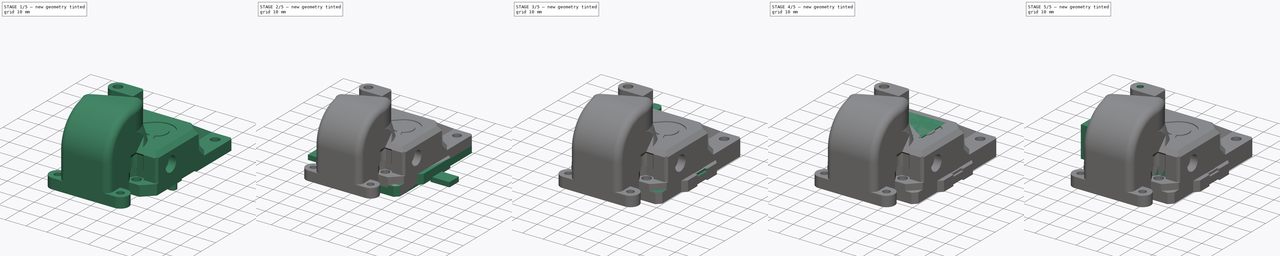
[diagram: build sequence overview — one tinted view per stage of 5, left to right]
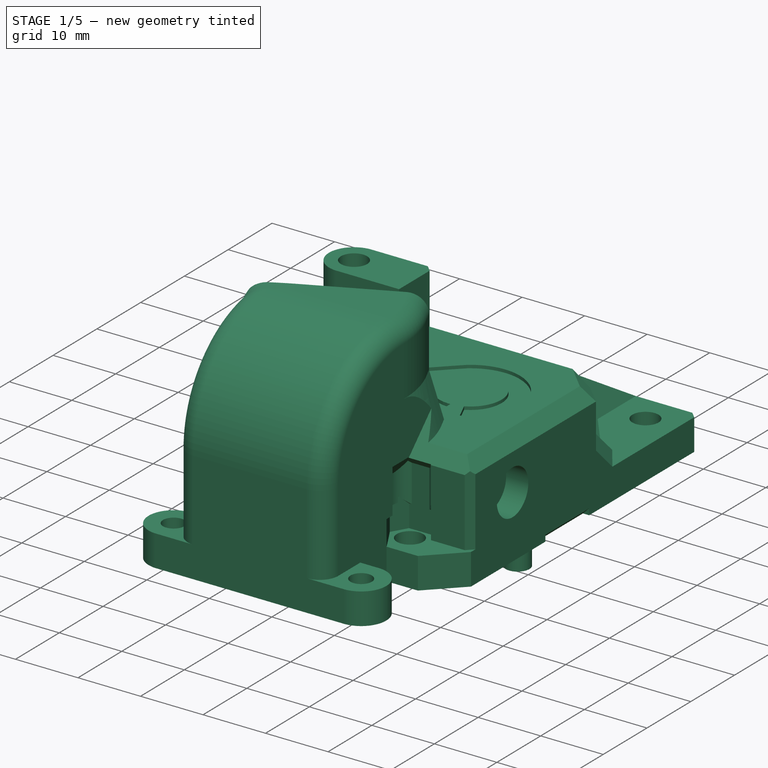
[diagram: stage 1 of 5 — iso view after this stage's code; geometry added in this stage tinted green]
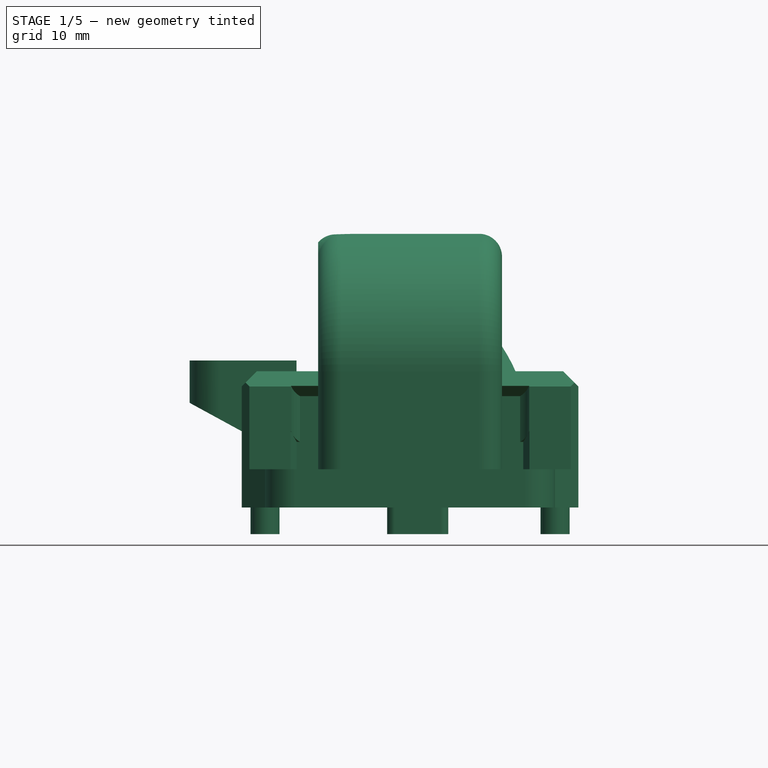
[diagram: stage 1 of 5 — front view after this stage's code; geometry added in this stage tinted green]
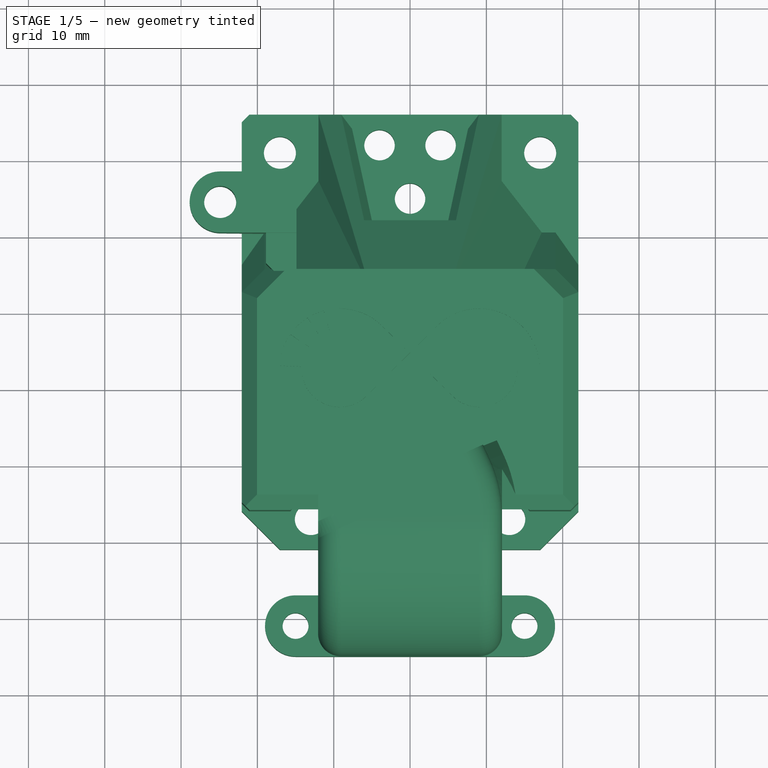
[diagram: stage 1 of 5 — top view after this stage's code; geometry added in this stage tinted green]
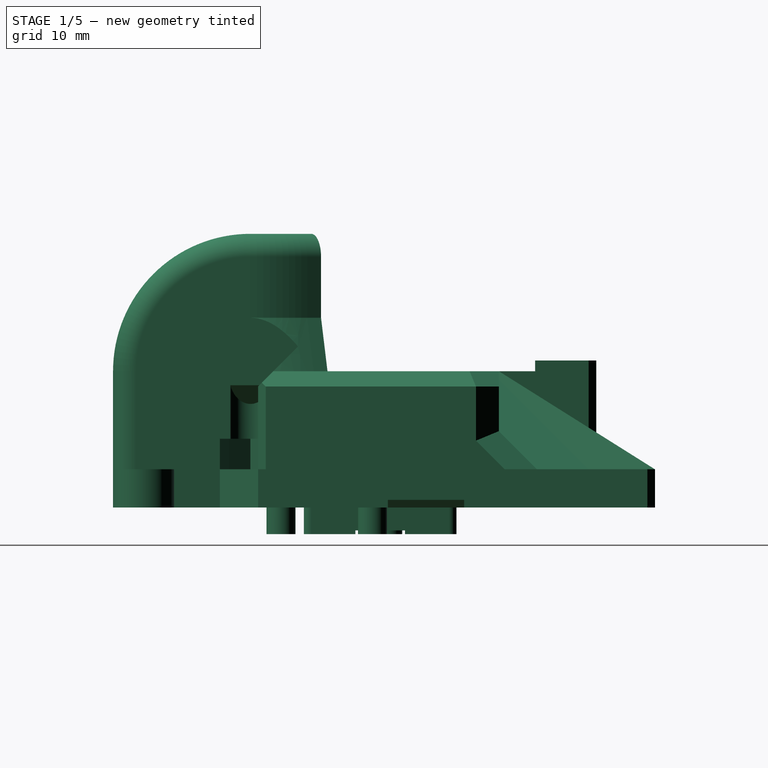
[diagram: stage 1 of 5 — right view after this stage's code; geometry added in this stage tinted green]
FCSTD DOCUMENT  (FreeCAD 0.19R24291 (Git))
Label: face-plate_w_inserts
License: Other
LicenseURL: GPL3
objects: Part::Feature×62, Part::MultiFuse×19, Part::Box×18, Part::Cylinder×16, Part::Cut×14, Part::Chamfer×6, Sketcher::SketchObject×4, Part::Refine×3, Part::Fillet×3, PartDesign::Pocket×3, App::Part×2, PartDesign::Pad×2, Part::Extrusion×1, Part::MultiCommon×1, PartDesign::FeatureBase×1, PartDesign::Body×1
note: 159 computed .brp shape members not serialized (recipe doc carries the construction recipe); baked Part::Feature solids carry a one-line shape summary decoded from their .brp

FEATURE [Part::Cylinder] Cylinder006
  Angle = 360
  AttacherType = Attacher::AttachEngine3D
  Height = 10
  Placement = pos=(-19,1,0) rot=(0,0,1;0rad)
  Radius = 1.9
FEATURE [Part::Cylinder] Cylinder007
  Angle = 360
  AttacherType = Attacher::AttachEngine3D
  Height = 10
  Placement = pos=(-19,-13,0) rot=(0,0,1;0rad)
  Radius = 1.9
FEATURE [Part::Cylinder] Cylinder008
  Angle = 360
  AttacherType = Attacher::AttachEngine3D
  Height = 10
  Placement = pos=(19,-1,0) rot=(0,0,1;0rad)
  Radius = 1.9
FEATURE [Part::Cylinder] Cylinder011
  Angle = 360
  AttacherType = Attacher::AttachEngine3D
  Height = 10
  Placement = pos=(0,7,0) rot=(0,0,1;0rad)
  Radius = 1.6
FEATURE [Part::Cylinder] Cylinder012
  Angle = 360
  AttacherType = Attacher::AttachEngine3D
  Height = 10
  Placement = pos=(0,-7,0) rot=(0,0,1;0rad)
  Radius = 1.6
FEATURE [Part::Box] Box008  label="Cube008"
  AttacherType = Attacher::AttachEngine3D
  Height = 4
  Length = 8
  Placement = pos=(-3,-10,0) rot=(0,0,1;0rad)
  Width = 20
FEATURE [Part::MultiFuse] Fusion017
  Shapes = -> [Cylinder011,Cylinder012]
FEATURE [Part::Box] Box009  label="Cube009"
  AttacherType = Attacher::AttachEngine3D
  Height = 0.5
  Length = 10
  Placement = pos=(-4,-3.25,0) rot=(0,0,1;0rad)
  Width = 6.5
FEATURE [Part::Fillet] Fillet002
  Base = -> Box008
  Edges = 4 edges r=1: [Edge1,Edge3,Edge5,Edge7]
FEATURE [Part::Cut] Cut008004003012001003001009
  Base = -> Fillet002
  Tool = -> Fusion017
FEATURE [Part::Cut] Cut008004003012001003001010  label="belt-clamp"
  Base = -> Cut008004003012001003001009
  Tool = -> Box009
FEATURE [Part::Refine] Fillet001001  label="face-plate-rf001"
  Source = -> Fillet001
FEATURE [Part::Refine] Cut008004003012001003001010001  label="belt-clamp002"
  Source = -> Cut008004003012001003001010
FEATURE [Part::Feature] Fillet001001001  label="face-plate-rf002"
  shape: bbox 48 x 57 x 8 mm, 236 faces (baked)
FEATURE [Part::Feature] Cut008004003012001003001010001001  label="belt-clamp003"
  Placement = pos=(19,6,6) rot=(0,0,1;0rad)
  shape: bbox 8 x 20 x 4 mm, 16 faces (baked)
FEATURE [PartDesign::FeatureBase] BaseFeature
  BaseFeature = -> Cut008004003012001003001001
FEATURE [Sketcher::SketchObject] Sketch
  ExternalGeometry = -> [BaseFeature]
  FullyConstrained = true
  MapMode = 5
  Placement = pos=(0,0,3.5) rot=(1,0,0;3.14159rad)
  Support = -> [BaseFeature]
  sketch-geometry (28):
    g0: LineSegment StartX=14.6166 StartY=19.8 StartZ=0 EndX=16.2332 EndY=17 EndZ=0
    g1: LineSegment StartX=16.2332 StartY=17 StartZ=0 EndX=14.8384 EndY=14.5842 EndZ=0
    g2: LineSegment StartX=14.8384 StartY=14.5842 StartZ=0 EndX=11.1616 EndY=14.5842 EndZ=0
    g3: LineSegment StartX=11.1616 StartY=14.5842 StartZ=0 EndX=9.76684 EndY=17 EndZ=0
    g4: LineSegment StartX=9.76684 StartY=17 StartZ=0 EndX=11.3834 EndY=19.8 EndZ=0
    g5: LineSegment StartX=11.3834 StartY=19.8 StartZ=0 EndX=14.6166 EndY=19.8 EndZ=0
    g6: LineSegment StartX=-9.76684 StartY=17 StartZ=0 EndX=-11.3834 EndY=19.8 EndZ=0
    g7: LineSegment StartX=-11.3834 StartY=19.8 StartZ=0 EndX=-14.6166 EndY=19.8 EndZ=0
    g8: LineSegment StartX=-14.6166 StartY=19.8 StartZ=0 EndX=-16.2332 EndY=17 EndZ=0
    g9: LineSegment StartX=-16.2332 StartY=17 StartZ=0 EndX=-14.8384 EndY=14.5842 EndZ=0
    g10: LineSegment StartX=-14.8384 StartY=14.5842 StartZ=0 EndX=-11.1616 EndY=14.5842 EndZ=0
    g11: LineSegment StartX=-11.1616 StartY=14.5842 StartZ=0 EndX=-9.76684 EndY=17 EndZ=0
    g12: LineSegment StartX=-18.6666 StartY=-28.2 StartZ=0 EndX=-20.2832 EndY=-31 EndZ=0
    g13: LineSegment StartX=-20.2832 StartY=-31 StartZ=0 EndX=-18.6666 EndY=-33.8 EndZ=0
    g14: LineSegment StartX=-18.6666 StartY=-33.8 StartZ=0 EndX=-15.4334 EndY=-33.8 EndZ=0
    g15: LineSegment StartX=-15.4334 StartY=-33.8 StartZ=0 EndX=-13.8168 EndY=-31 EndZ=0
    g16: LineSegment StartX=-13.8168 StartY=-31 StartZ=0 EndX=-15.4334 EndY=-28.2 EndZ=0
    g17: LineSegment StartX=-15.4334 StartY=-28.2 StartZ=0 EndX=-18.6666 EndY=-28.2 EndZ=0
    g18: LineSegment StartX=15.4334 StartY=-28.2 StartZ=0 EndX=18.6666 EndY=-28.2 EndZ=0
    g19: LineSegment StartX=18.6666 StartY=-28.2 StartZ=0 EndX=20.2832 EndY=-31 EndZ=0
    g20: LineSegment StartX=20.2832 StartY=-31 StartZ=0 EndX=18.6666 EndY=-33.8 EndZ=0
    g21: LineSegment StartX=18.6666 StartY=-33.8 StartZ=0 EndX=15.4334 EndY=-33.8 EndZ=0
    g22: LineSegment StartX=15.4334 StartY=-33.8 StartZ=0 EndX=13.8168 EndY=-31 EndZ=0
    g23: LineSegment StartX=13.8168 StartY=-31 StartZ=0 EndX=15.4334 EndY=-28.2 EndZ=0
    g24: Circle CenterX=13 CenterY=17 CenterZ=0 NormalX=0 NormalY=0 NormalZ=1 AngleXU=0 Radius=1.65
    g25: Circle CenterX=-13 CenterY=17 CenterZ=0 NormalX=0 NormalY=0 NormalZ=1 AngleXU=0 Radius=1.65
    g26: Circle CenterX=-17.05 CenterY=-31 CenterZ=0 NormalX=0 NormalY=0 NormalZ=1 AngleXU=0 Radius=1.65
    g27: Circle CenterX=17.05 CenterY=-31 CenterZ=0 NormalX=0 NormalY=0 NormalZ=1 AngleXU=0 Radius=1.65
  constraints (56):
    c: Coincident(g-20,g0)
    c: Coincident(g0,g-20)
    c: Coincident(g0,g1)
    c: Coincident(g1,g-19)
    c: Coincident(g1,g2)
    c: Coincident(g2,g-18)
    c: Coincident(g2,g3)
    c: Coincident(g3,g-16)
    c: Coincident(g3,g4)
    c: Coincident(g4,g-17)
    c: Coincident(g4,g5)
    c: Coincident(g5,g0)
    c: Coincident(g-25,g6)
    c: Coincident(g6,g-24)
    c: Coincident(g6,g7)
    c: Coincident(g7,g-23)
    c: Coincident(g7,g8)
    c: Coincident(g8,g-22)
    c: Coincident(g8,g9)
    c: Coincident(g9,g-26)
    c: Coincident(g10,g9)
    c: Coincident(g10,g-26)
    c: Coincident(g11,g10)
    c: Coincident(g11,g6)
    c: Coincident(g12,g-14)
    c: Coincident(g12,g-14)
    c: Coincident(g13,g12)
    c: Coincident(g13,g-10)
    c: Coincident(g14,g-10)
    c: Coincident(g14,g-11)
    c: Coincident(g15,g14)
    c: Coincident(g15,g-12)
    c: Coincident(g16,g15)
    c: Coincident(g16,g-13)
    c: Coincident(g17,g16)
    c: Coincident(g17,g12)
    c: Coincident(g18,g-5)
    c: Coincident(g18,g-6)
    c: Coincident(g19,g18)
    c: Coincident(g19,g-7)
    c: Coincident(g20,g19)
    c: Coincident(g20,g-8)
    c: Coincident(g21,g20)
    c: Coincident(g21,g-3)
    c: Coincident(g22,g21)
    c: Coincident(g22,g-4)
    c: Coincident(g23,g22)
    c: Coincident(g23,g18)
    c: Coincident(g24,g-30)
    c: Coincident(g25,g-29)
    c: Coincident(g26,g-28)
    c: Coincident(g27,g-27)
    c: Equal(g25,g24)
    c: Equal(g24,g27)
    c: Equal(g27,g26)
    c: Equal(g27,g-27)
FEATURE [PartDesign::Pad] Pad
  BaseFeature = -> BaseFeature
  Direction = (1,1,1)
  Length = 10
  Length2 = 100
  Profile = -> Sketch
  Refine = true
  Reversed = true
  Type = 3
  UpToFace = -> BaseFeature [Face148]
FEATURE [Sketcher::SketchObject] Sketch001
  ExternalGeometry = -> [Pad]
  FullyConstrained = true
  MapMode = 5
  Placement = pos=(0,0,3.5) rot=(1,0,0;3.14159rad)
  Support = -> [Pad]
  sketch-geometry (4):
    g0: Circle CenterX=17.05 CenterY=-31 CenterZ=0 NormalX=0 NormalY=0 NormalZ=1 AngleXU=0 Radius=2.1
    g1: Circle CenterX=-17.05 CenterY=-31 CenterZ=0 NormalX=0 NormalY=0 NormalZ=1 AngleXU=0 Radius=2.1
    g2: Circle CenterX=-13 CenterY=17 CenterZ=0 NormalX=0 NormalY=0 NormalZ=1 AngleXU=0 Radius=2.1
    g3: Circle CenterX=13 CenterY=17 CenterZ=0 NormalX=0 NormalY=0 NormalZ=1 AngleXU=0 Radius=2.1
  constraints (8):
    c: Coincident(g0,g-6)
    c: Coincident(g1,g-3)
    c: Coincident(g2,g-4)
    c: Coincident(g3,g-5)
    c: Equal(g0,g3)
    c: Equal(g3,g2)
    c: Equal(g2,g1)
    c: Diameter(g2) = 4.2
FEATURE [PartDesign::Pocket] Pocket
  BaseFeature = -> Pad
  Length = 5
  Length2 = 100
  Profile = -> Sketch001
  Refine = true
  Type = 0
FEATURE [PartDesign::Pad] Pad001
  BaseFeature = -> Pocket
  Direction = (1,1,1)
  Length = 10
  Length2 = 100
  Profile = -> Pocket [Face467]
  Refine = true
  Type = 0
FEATURE [Sketcher::SketchObject] Sketch002
  ExternalGeometry = -> [Pad001]
  FullyConstrained = false
  MapMode = 5
  Placement = pos=(-2.46e-14,28.3023,0) rot=(0,0.707107,0.707107;3.14159rad)
  Support = -> [Pad001]
  sketch-geometry (4):
    g0: LineSegment StartX=20.4129 StartY=12.5884 StartZ=0 EndX=30.3188 EndY=17.9916 EndZ=0
    g1: LineSegment StartX=20.4129 StartY=12.5884 StartZ=0 EndX=21.5374 EndY=8.65501 EndZ=0
    g2: LineSegment StartX=21.5374 StartY=8.65501 StartZ=0 EndX=30.92 EndY=9.23537 EndZ=0
    g3: LineSegment StartX=30.92 StartY=9.23537 StartZ=0 EndX=30.3188 EndY=17.9916 EndZ=0
  constraints (6):
    c: PointOnObject(g0,g-3)
    c: Parallel(g0,g-3)
    c: Coincident(g1,g0)
    c: Coincident(g2,g1)
    c: Coincident(g3,g2)
    c: Coincident(g3,g0)
FEATURE [PartDesign::Pocket] Pocket001
  BaseFeature = -> Pad001
  Length = 7
  Length2 = 100
  Profile = -> Sketch002
  Refine = true
  Type = 0
FEATURE [Sketcher::SketchObject] Sketch003
  ExternalGeometry = -> [Pocket001]
  FullyConstrained = true
  MapMode = 5
  Placement = pos=(0,0,22.75) rot=(0,0,1;0rad)
  Support = -> [Pocket001]
  sketch-geometry (1):
    g0: Circle CenterX=-24.8758 CenterY=24.3023 CenterZ=0 NormalX=0 NormalY=0 NormalZ=1 AngleXU=0 Radius=2.1
  constraints (2):
    c: Coincident(g0,g-3)
    c: Diameter(g0) = 4.2
FEATURE [PartDesign::Pocket] Pocket002
  BaseFeature = -> Pocket001
  Length = 9
  Length2 = 100
  Profile = -> Sketch003
  Refine = true
  Type = 0
FEATURE [PartDesign::Body] Body
  BaseFeature = -> Cut008004003012001003001001
  Group = -> [BaseFeature,Sketch,Pad,Sketch001,Pocket,Pad001,Sketch002,Pocket001,Sketch003,Pocket002]
  Origin = -> Origin002
  Tip = -> Pocket002
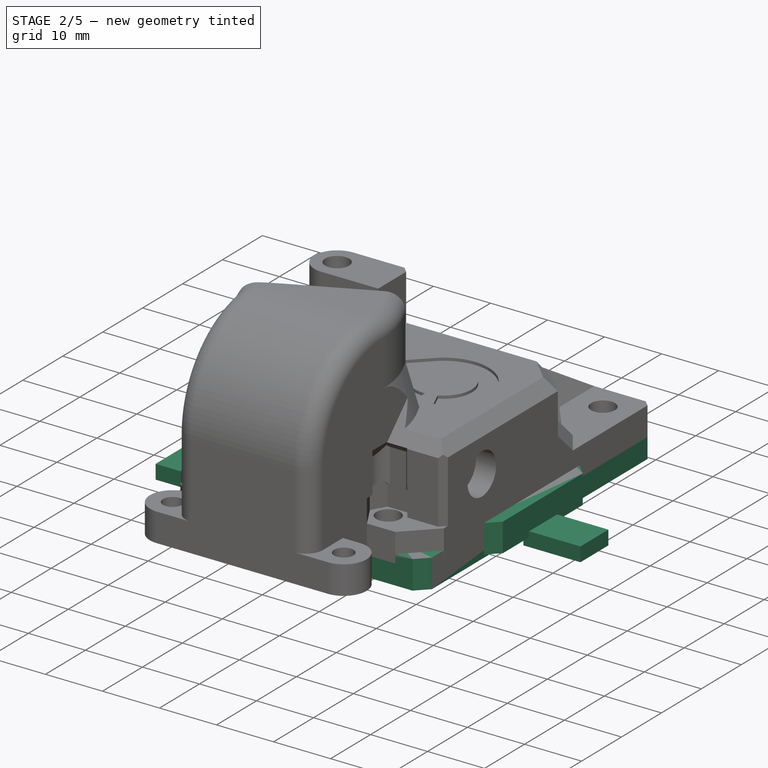
[diagram: stage 2 of 5 — iso view after this stage's code; geometry added in this stage tinted green]
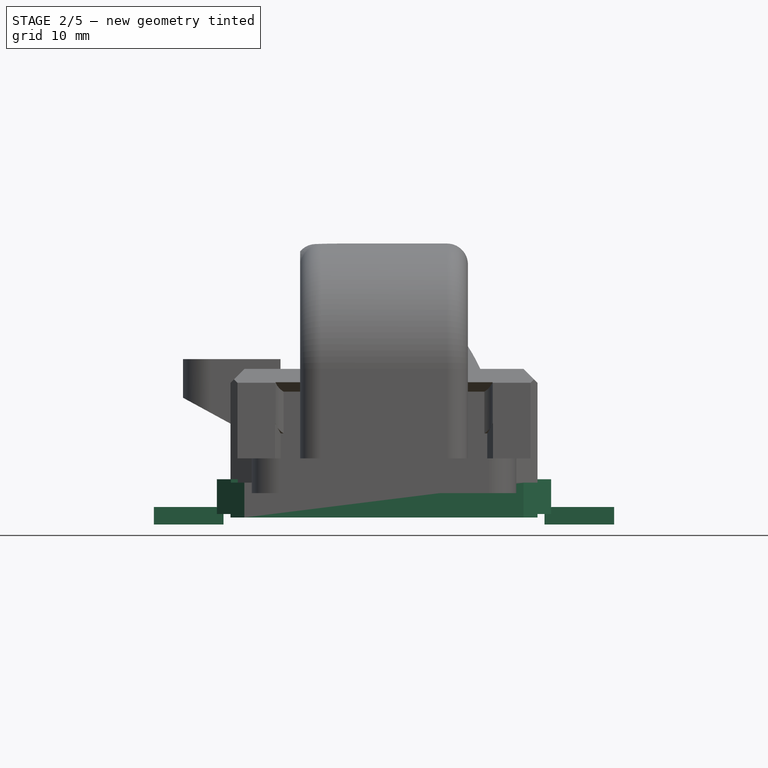
[diagram: stage 2 of 5 — front view after this stage's code; geometry added in this stage tinted green]
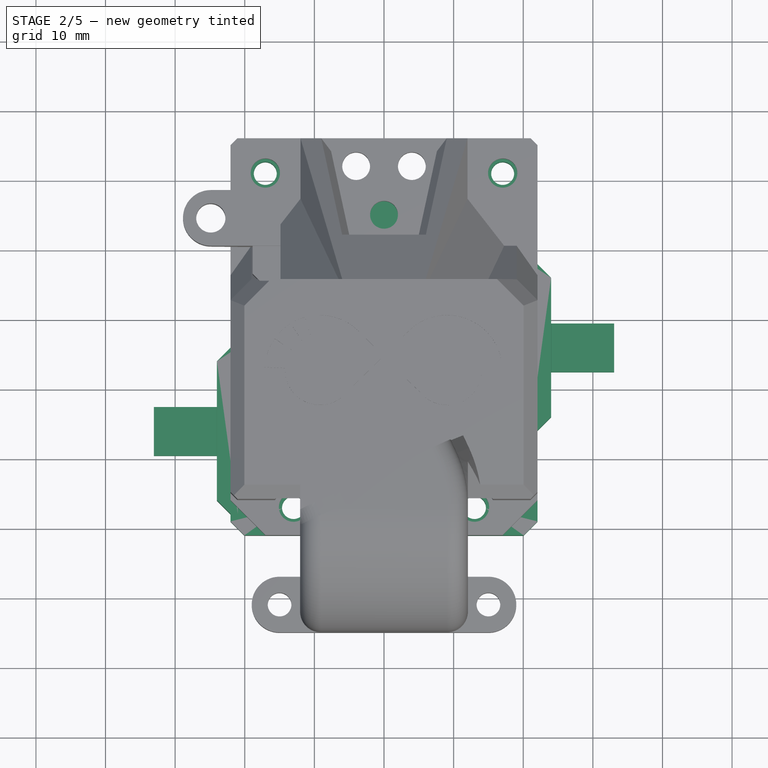
[diagram: stage 2 of 5 — top view after this stage's code; geometry added in this stage tinted green]
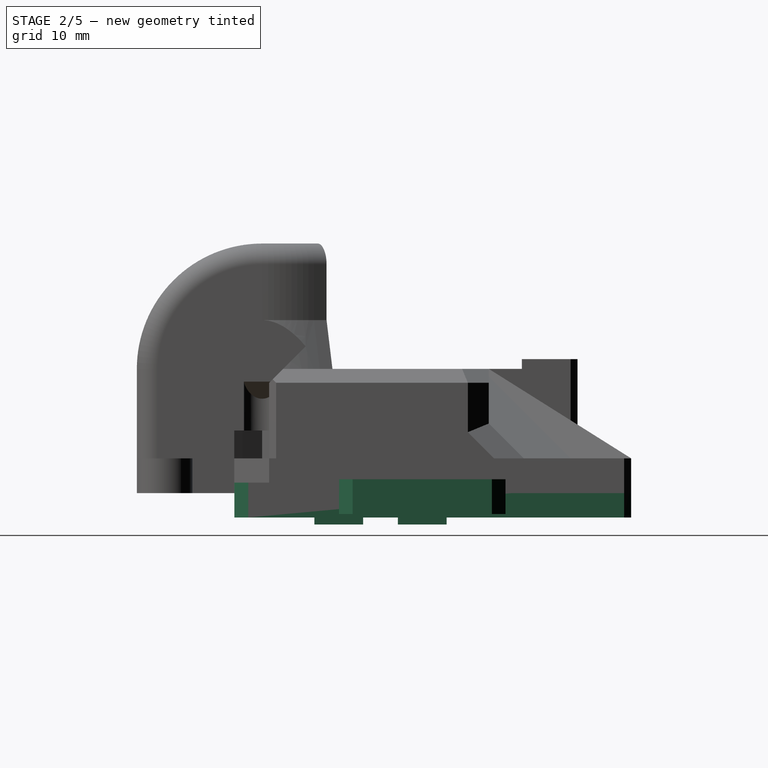
[diagram: stage 2 of 5 — right view after this stage's code; geometry added in this stage tinted green]
FEATURE [Part::Cylinder] Cylinder
  Angle = 360
  AttacherType = Attacher::AttachEngine3D
  Height = 10
  Placement = pos=(-10.8,17.71,0) rot=(0,0,1;1.5708rad)
  Radius = 2
FEATURE [Part::Cylinder] Cylinder001
  Angle = 360
  AttacherType = Attacher::AttachEngine3D
  Height = 10
  Placement = pos=(10.8,17.705,0) rot=(0,0,1;0rad)
  Radius = 2
FEATURE [Part::MultiFuse] Fusion002
  Shapes = -> [Cylinder001,Cylinder]
FEATURE [Part::Box] Box006  label="Cube006"
  AttacherType = Attacher::AttachEngine3D
  Height = 2.5
  Length = 10
  Placement = pos=(-37,-9.5,-1) rot=(0,0,1;0rad)
  Width = 7
FEATURE [Part::Box] Box007  label="Cube007"
  AttacherType = Attacher::AttachEngine3D
  Height = 2.5
  Length = 10
  Placement = pos=(28,2.5,-1) rot=(0,0,1;0rad)
  Width = 7
FEATURE [Part::Cylinder] Cylinder005
  Angle = 360
  AttacherType = Attacher::AttachEngine3D
  Height = 10
  Placement = pos=(19,13,0) rot=(0,0,1;0rad)
  Radius = 1.9
FEATURE [Part::Feature] Part__Feature074_cs001
  shape: bbox 30 x 14.2 x 3e-07 mm, 0 faces, 0 solids (baked)
FEATURE [Part::Feature] Body005  label="base-plate"
  shape: bbox 44.1 x 57 x 5 mm, 134 faces (baked)
FEATURE [Part::Extrusion] Extrude
  Base = -> Part__Feature074_cs001
  Dir = (0,0,1)
  DirMode = 2
  FaceMakerClass = Part::FaceMakerBullseye
  LengthFwd = 3
  LengthRev = 0
  Placement = pos=(0,0,-1) rot=(0,0,1;0rad)
  Solid = true
  Symmetric = false
FEATURE [Part::Feature] Part__Feature074  label="universal_face"
  Placement = pos=(-0.00422634,7.50353,0.50127) rot=(-1,0,0;1.5708rad)
  shape: bbox 44.11 x 57.01 x 8.01 mm, 258 faces (baked)
FEATURE [Part::MultiFuse] Fusion
  Shapes = -> [Extrude,Body005]
FEATURE [Part::Chamfer] Chamfer003
  Base = -> Box006
  Edges = 1 edges r=1: [Edge6]
  Placement = pos=(3.95,0,0) rot=(0,0,1;0rad)
FEATURE [Part::Chamfer] Chamfer004
  Base = -> Box007
  Edges = 1 edges r=1: [Edge2]
  Placement = pos=(-4.95,0,0) rot=(0,0,1;0rad)
FEATURE [Part::Refine] Cut008004003012001003001
  Source = -> Cut008004003012001003
FEATURE [Part::Feature] Cut008004003012001003001001
  shape: bbox 50.93 x 72.49 x 37.34 mm, 488 faces (baked)
FEATURE [Part::Box] Box020  label="Cube018"
  AttacherType = Attacher::AttachEngine3D
  Height = 5
  Length = 3
  Placement = pos=(21,-6,0.5) rot=(0,0,1;0rad)
  Width = 24
FEATURE [Part::Box] Box021  label="Cube019"
  AttacherType = Attacher::AttachEngine3D
  Height = 5
  Length = 3
  Placement = pos=(-24,-18,0.5) rot=(0,0,1;0rad)
  Width = 24
FEATURE [Part::Chamfer] Chamfer005
  Base = -> Box021
  Edges = 2 edges r=2: [Edge1,Edge3]
FEATURE [Part::Chamfer] Chamfer006
  Base = -> Box020
  Edges = 2 edges r=2: [Edge5,Edge7]
FEATURE [Part::MultiFuse] Fusion001007011015
  Shapes = -> [Chamfer005,Chamfer006]
FEATURE [Part::MultiFuse] Fusion001007011017
  Shapes = -> [Chamfer004,Chamfer003]
FEATURE [Part::MultiFuse] Fusion001007011018
  Shapes = -> [Cylinder006,Cylinder005,Cylinder007,Cylinder008]
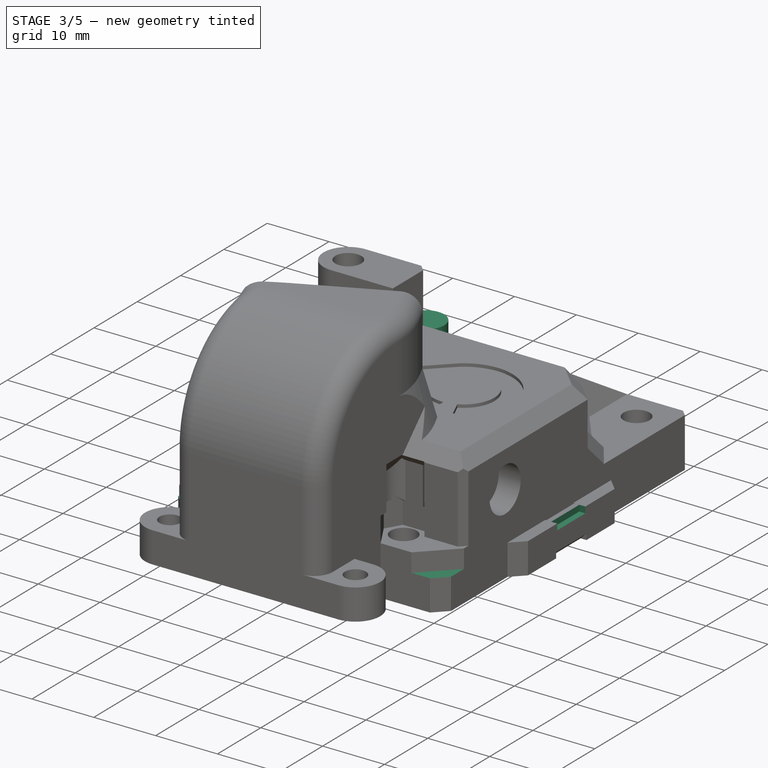
[diagram: stage 3 of 5 — iso view after this stage's code; geometry added in this stage tinted green]
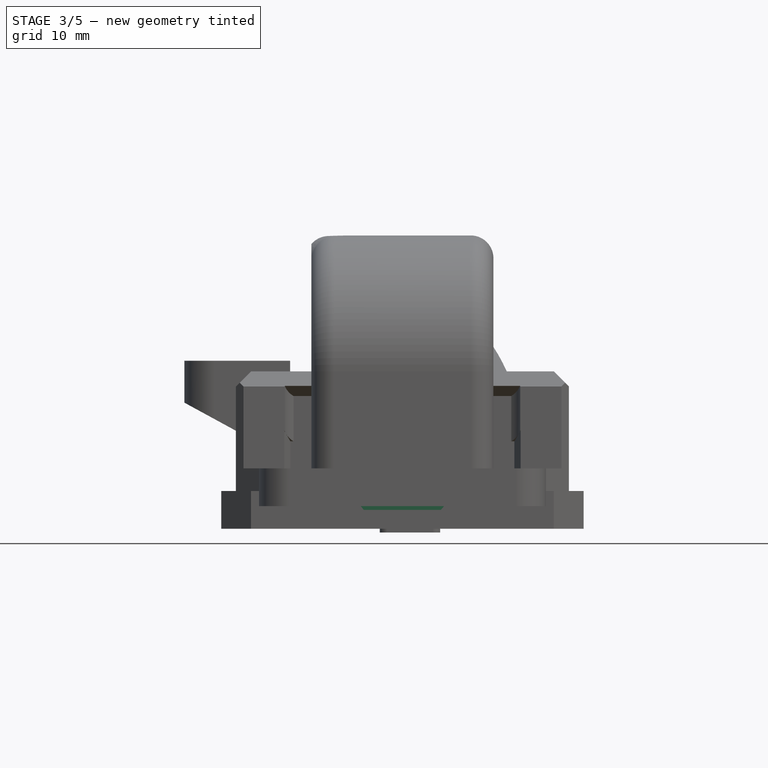
[diagram: stage 3 of 5 — front view after this stage's code; geometry added in this stage tinted green]
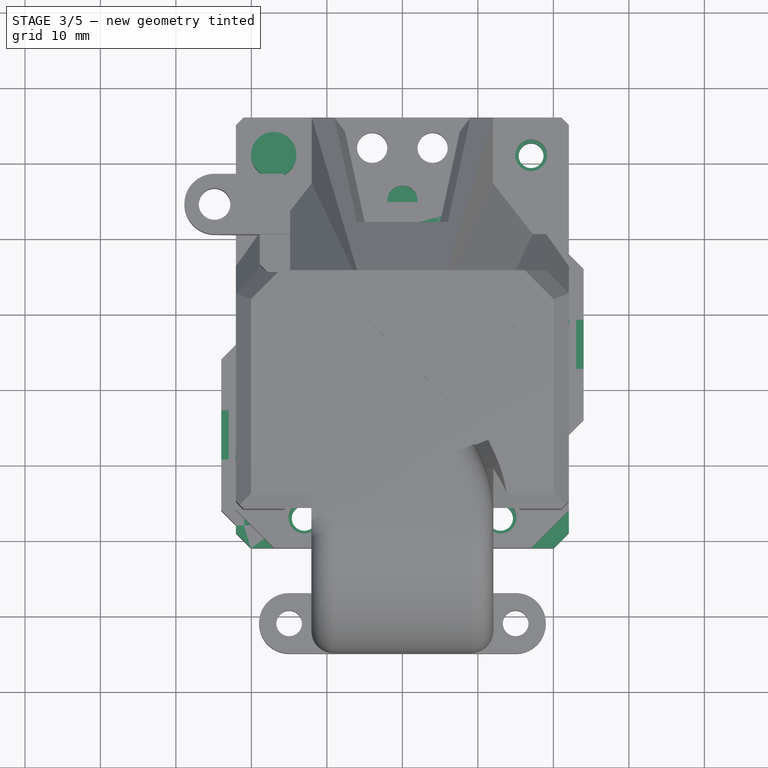
[diagram: stage 3 of 5 — top view after this stage's code; geometry added in this stage tinted green]
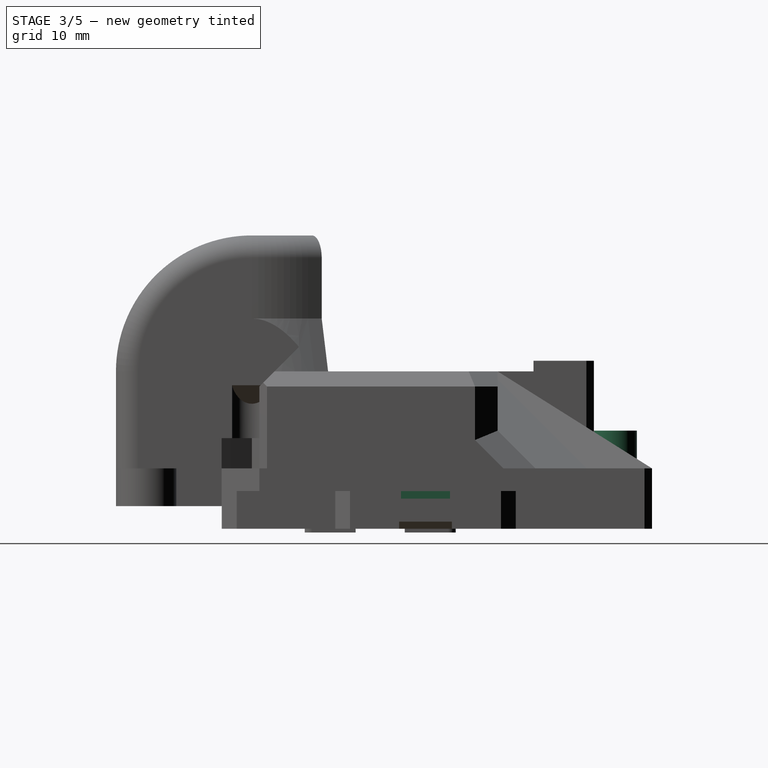
[diagram: stage 3 of 5 — right view after this stage's code; geometry added in this stage tinted green]
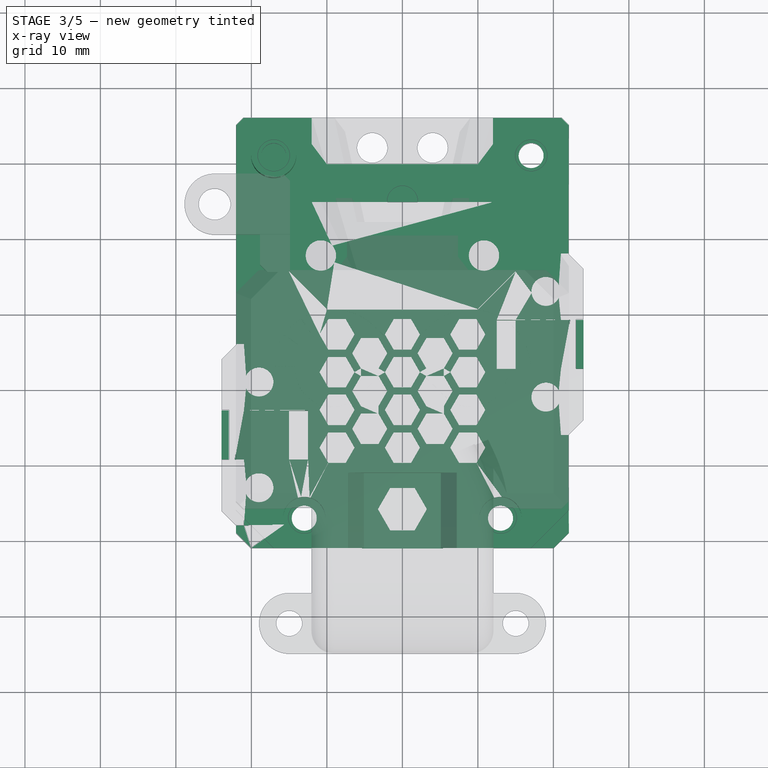
[diagram: stage 3 of 5 — x-ray composite at the top view; earlier geometry ghosted, this stage's added geometry solid]
FEATURE [Part::Feature] Extrude003002001  label="2020"
  Placement = pos=(50,0,-13) rot=(0,-1,0;1.5708rad)
  shape: bbox 100 x 20 x 20 mm, 63 faces (baked)
FEATURE [Part::Box] Box004  label="Cube004"
  AttacherType = Attacher::AttachEngine3D
  Height = 10.39
  Length = 2.5
  Placement = pos=(12.5,2.75,0) rot=(0,0,1;0rad)
  Width = 6.5
FEATURE [Part::Box] Box005  label="Cube005"
  AttacherType = Attacher::AttachEngine3D
  Height = 10.39
  Length = 2.5
  Placement = pos=(-15,-9.25,0) rot=(0,0,1;0rad)
  Width = 6.5
FEATURE [Part::Feature] Part__Feature008  label="mosquito005"
  Placement = pos=(-3.42e-14,-6.9e-14,18.5) rot=(0,0,1;0rad)
  shape: bbox 1.4 x 1.4 x 9.686 mm, 1 faces, 0 solids (baked)
FEATURE [Part::Feature] Part__Feature020  label="mosquito017"
  Placement = pos=(-3.42e-14,-6.9e-14,18.5) rot=(0,0,1;0rad)
  shape: bbox 7.8 x 7.8 x 0.4 mm, 3 faces, 0 solids (baked)
FEATURE [Part::Feature] Part__Feature021  label="mosquito018"
  Placement = pos=(-3.42e-14,-6.9e-14,18.5) rot=(0,0,1;0rad)
  shape: bbox 2 x 5.5 x 5.5 mm, 9 faces, 0 solids (baked)
FEATURE [Part::Feature] Part__Feature028  label="shroud"
  Placement = pos=(-2.78e-14,-25,42) rot=(0,0,1;0rad)
  shape: bbox 45.38 x 29.94 x 58.74 mm, 133 faces (baked)
FEATURE [Part::Feature] Part__Feature034  label="4010 FAN"
  Placement = pos=(-2.4e-14,-12,42) rot=(0,0,1;0rad)
  shape: bbox 40 x 10 x 40 mm, 104 faces (baked)
FEATURE [Part::Feature] Part__Feature017  label="mosquito014"
  Placement = pos=(-3.42e-14,-6.9e-14,18.5) rot=(0,0,1;0rad)
  shape: bbox 2.15 x 2.15 x 31.5 mm, 1 faces, 0 solids (baked)
FEATURE [Part::Feature] Part__Feature037  label="M3  Hex nut 002"
  Placement = pos=(16,-5.5,58) rot=(0.57735,-0.57735,-0.57735;4.18879rad)
  shape: bbox 7.805 x 2.436 x 7.805 mm, 21 faces (baked)
FEATURE [Part::Feature] Part__Feature039  label="M3  Hex nut 003"
  Placement = pos=(-16,-0.9,25.9843) rot=(0.57735,-0.57735,-0.57735;4.18879rad)
  shape: bbox 7.805 x 2.436 x 7.805 mm, 21 faces (baked)
FEATURE [Part::Feature] Part__Feature040  label="M3  Hex nut 004"
  Placement = pos=(-17,-5,39.5) rot=(0,1,0;1.5708rad)
  shape: bbox 2.436 x 7.805 x 7.805 mm, 21 faces (baked)
FEATURE [Part::Feature] Part__Feature018  label="mosquito015"
  Placement = pos=(-3.42e-14,-6.9e-14,18.5) rot=(0,0,1;0rad)
  shape: bbox 1.4 x 1.4 x 9.686 mm, 1 faces, 0 solids (baked)
FEATURE [Part::Feature] Part__Feature044  label="DIN 912 M2.5 12 mm001"
  Placement = pos=(6,0,53.6) rot=(1,0,0;3.14159rad)
  shape: bbox 5.066 x 5.066 x 14.5 mm, 15 faces (baked)
FEATURE [Part::Feature] Part__Feature032  label="M3  Hex nut 001"
  Placement = pos=(16,-0.9,26) rot=(0.57735,-0.57735,-0.57735;4.18879rad)
  shape: bbox 7.805 x 2.436 x 7.805 mm, 21 faces (baked)
FEATURE [Part::Feature] Part__Feature019  label="mosquito016"
  Placement = pos=(-3.42e-14,-6.9e-14,18.5) rot=(0,0,1;0rad)
  shape: bbox 2.16 x 2.16 x 14.5 mm, 1 faces, 0 solids (baked)
FEATURE [Part::Feature] Part__Feature015  label="mosquito012"
  Placement = pos=(-3.42e-14,-6.9e-14,18.5) rot=(0,0,1;0rad)
  shape: bbox 2.38 x 2.38 x 14.5 mm, 1 faces, 0 solids (baked)
FEATURE [Part::Feature] Part__Feature038  label="DIN 912 M2.5 12 mm"
  Placement = pos=(-6,0,53.6) rot=(1,0,0;3.14159rad)
  shape: bbox 5.066 x 5.066 x 14.5 mm, 15 faces (baked)
FEATURE [Part::Feature] Part__Feature029  label="DIN 912 M3 8 mm"
  Placement = pos=(0,11.35,22) rot=(0,0.707107,0.707107;3.14159rad)
  shape: bbox 5.953 x 11 x 5.953 mm, 15 faces (baked)
FEATURE [Part::Feature] Part__Feature041  label="mosquito_face"
  Placement = pos=(-2.78e-14,10,55.5) rot=(0,0,1;0rad)
  shape: bbox 40.01 x 24.77 x 40.61 mm, 124 faces (baked)
FEATURE [Part::Feature] Part__Feature042  label="DIN 912 M3 20 mm001"
  Placement = pos=(-16,-23,58) rot=(-1,0,0;1.5708rad)
  shape: bbox 5.953 x 23 x 5.953 mm, 15 faces (baked)
FEATURE [Part::Feature] Part__Feature030  label="DIN 912 M3 10 mm001"
  Placement = pos=(-24.6,-5.04159,31.6575) rot=(0.57735,-0.57735,0.57735;4.18879rad)
  shape: bbox 13 x 5.953 x 5.953 mm, 15 faces (baked)
FEATURE [Part::Feature] Part__Feature007  label="mosquito004"
  Placement = pos=(-3.42e-14,-6.9e-14,18.5) rot=(0,0,1;0rad)
  shape: bbox 23.27 x 18.01 x 12.51 mm, 54 faces, 0 solids (baked)
FEATURE [Part::Feature] Part__Feature013  label="mosquito010"
  Placement = pos=(-3.42e-14,-6.9e-14,18.5) rot=(0,0,1;0rad)
  shape: bbox 2 x 5.5 x 5.5 mm, 9 faces, 0 solids (baked)
FEATURE [Part::Feature] Part__Feature016  label="mosquito013"
  Placement = pos=(-3.42e-14,-6.9e-14,18.5) rot=(0,0,1;0rad)
  shape: bbox 6.2 x 6.2 x 7.765 mm, 5 faces, 0 solids (baked)
FEATURE [Part::Feature] Part__Feature009  label="mosquito006"
  Placement = pos=(-3.42e-14,-6.9e-14,18.5) rot=(0,0,1;0rad)
  shape: bbox 7.8 x 7.8 x 0.4 mm, 3 faces, 0 solids (baked)
FEATURE [Part::Feature] Part__Feature006  label="mosquito003"
  Placement = pos=(-3.42e-14,-6.9e-14,18.5) rot=(0,0,1;0rad)
  shape: bbox 9.503 x 9.503 x 1.942 mm, 13 faces, 0 solids (baked)
FEATURE [Part::Feature] Part__Feature001  label="DIN 912 M3 25 mm"
  Placement = pos=(10.8,-7,55.5) rot=(-1,0,0;1.5708rad)
  shape: bbox 5.953 x 28 x 5.953 mm, 15 faces (baked)
FEATURE [Part::Feature] Part__Feature011  label="mosquito008"
  Placement = pos=(-3.42e-14,-6.9e-14,18.5) rot=(0,0,1;0rad)
  shape: bbox 7 x 7 x 0.4 mm, 3 faces, 0 solids (baked)
FEATURE [Part::Feature] Part__Feature005  label="mosquito002"
  Placement = pos=(-3.42e-14,-6.9e-14,18.5) rot=(0,0,1;0rad)
  shape: bbox 25 x 13 x 25 mm, 187 faces, 0 solids (baked)
FEATURE [Part::Feature] Part__Feature014  label="mosquito011"
  Placement = pos=(-3.42e-14,-6.9e-14,18.5) rot=(0,0,1;0rad)
  shape: bbox 7.8 x 7.8 x 2.9 mm, 4 faces, 0 solids (baked)
FEATURE [Part::Feature] Part__Feature010  label="mosquito007"
  Placement = pos=(-3.42e-14,-6.9e-14,18.5) rot=(0,0,1;0rad)
  shape: bbox 2.16 x 2.16 x 14.5 mm, 1 faces, 0 solids (baked)
FEATURE [Part::Feature] Part__Feature035  label="DIN 912 M3 25 mm002"
  Placement = pos=(-10.8,-7,55.5) rot=(-1,0,0;1.5708rad)
  shape: bbox 5.953 x 28 x 5.953 mm, 15 faces (baked)
FEATURE [Part::Feature] Part__Feature002  label="DIN 912 M3 25 mm001"
  Placement = pos=(-16,-23,26) rot=(-1,0,0;1.5708rad)
  shape: bbox 5.953 x 28 x 5.953 mm, 15 faces (baked)
FEATURE [Part::Feature] Part__Feature  label="M3  Hex nut "
  Placement = pos=(-17,-5.04159,31.6575) rot=(0,1,0;1.5708rad)
  shape: bbox 2.436 x 7.805 x 7.805 mm, 21 faces (baked)
FEATURE [Part::Feature] Part__Feature004  label="mosquito001"
  Placement = pos=(-3.42e-14,-6.9e-14,18.5) rot=(0,0,1;0rad)
  shape: bbox 2.38 x 2.38 x 14.5 mm, 1 faces, 0 solids (baked)
FEATURE [Part::Feature] Part__Feature003  label="mosquito"
  Placement = pos=(-3.42e-14,-6.9e-14,18.5) rot=(0,0,1;0rad)
  shape: bbox 2.38 x 2.38 x 14.5 mm, 1 faces, 0 solids (baked)
FEATURE [Part::Feature] Part__Feature036  label="DIN 912 M3 25 mm003"
  Placement = pos=(16,-23,26) rot=(-1,0,0;1.5708rad)
  shape: bbox 5.953 x 28 x 5.953 mm, 15 faces (baked)
FEATURE [Part::Feature] Part__Feature012  label="mosquito009"
  Placement = pos=(-3.42e-14,-6.9e-14,18.5) rot=(0,0,1;0rad)
  shape: bbox 2.16 x 2.16 x 14.5 mm, 1 faces, 0 solids (baked)
FEATURE [Part::Feature] Part__Feature033  label="DIN 912 M3 20 mm"
  Placement = pos=(16,-23,58) rot=(-1,0,0;1.5708rad)
  shape: bbox 5.953 x 23 x 5.953 mm, 15 faces (baked)
FEATURE [Part::Feature] Part__Feature027  label="DIN 912 M3 10 mm"
  Placement = pos=(-24.6,-5,39.5) rot=(0.57735,-0.57735,0.57735;4.18879rad)
  shape: bbox 13 x 5.953 x 5.953 mm, 15 faces (baked)
FEATURE [Part::Feature] Part__Feature025  label="mosquito022"
  Placement = pos=(-3.42e-14,-6.9e-14,18.5) rot=(0,0,1;0rad)
  shape: bbox 2.16 x 2.16 x 14.5 mm, 1 faces, 0 solids (baked)
FEATURE [Part::Feature] Part__Feature026  label="mosquito023"
  Placement = pos=(-3.42e-14,-6.9e-14,18.5) rot=(0,0,1;0rad)
  shape: bbox 7.8 x 7.8 x 0.4 mm, 3 faces, 0 solids (baked)
FEATURE [Part::Feature] Part__Feature024  label="mosquito021"
  Placement = pos=(-3.42e-14,-6.9e-14,18.5) rot=(0,0,1;0rad)
  shape: bbox 7.002 x 7.002 x 12.16 mm, 22 faces, 0 solids (baked)
FEATURE [Part::Feature] Part__Feature023  label="mosquito020"
  Placement = pos=(-3.42e-14,-6.9e-14,18.5) rot=(0,0,1;0rad)
  shape: bbox 7.8 x 7.8 x 0.4 mm, 3 faces, 0 solids (baked)
FEATURE [Part::Feature] Part__Feature022  label="mosquito019"
  Placement = pos=(-3.42e-14,-6.9e-14,18.5) rot=(0,0,1;0rad)
  shape: bbox 2.38 x 2.38 x 14.5 mm, 1 faces, 0 solids (baked)
FEATURE [Part::Feature] Part__Feature043  label="M3  Hex nut 005"
  Placement = pos=(-16,-5.5,58) rot=(0.57735,-0.57735,-0.57735;4.18879rad)
  shape: bbox 7.805 x 2.436 x 7.805 mm, 21 faces (baked)
FEATURE [App::Part] mosquito__1_  label="mosquito <1>"
  Group = -> [Part__Feature003,Part__Feature004,Part__Feature005,Part__Feature006,Part__Feature007,Part__Feature008,Part__Feature009,Part__Feature010,Part__Feature011,Part__Feature012,Part__Feature013,Part__Feature014,Part__Feature015,Part__Feature016,Part__Feature017,Part__Feature018,Part__Feature019,Part__Feature020,Part__Feature021,Part__Feature022,Part__Feature023,Part__Feature024,Part__Feature025,+1 more]
  Origin = -> Origin
FEATURE [Part::Feature] Part__Feature031  label="mosquito_support"
  Placement = pos=(-2.78e-14,9.9,55.5) rot=(0,0,1;0rad)
  shape: bbox 40 x 20.25 x 12 mm, 97 faces (baked)
FEATURE [App::Part] _Face__Mosquito  label="[Face] Mosquito"
  Group = -> [Part__Feature,Part__Feature001,Part__Feature002,mosquito__1_,Part__Feature027,Part__Feature028,Part__Feature029,Part__Feature030,Part__Feature031,Part__Feature032,Part__Feature033,Part__Feature034,Part__Feature035,Part__Feature036,Part__Feature037,Part__Feature038,Part__Feature039,Part__Feature040,Part__Feature041,Part__Feature042,Part__Feature043,Part__Feature044]
  Origin = -> Origin001
  Placement = pos=(0,-38,18) rot=(1,0,0;4.71239rad)
FEATURE [Part::Feature] Fusion010  label="belt-teeth-cut001"
  Placement = pos=(-25,-6,4.5) rot=(0,0,1;0rad)
  shape: bbox 10 x 6.5 x 2.98 mm, 22 faces (baked)
FEATURE [Part::Feature] Fusion011  label="belt-teeth-cut002"
  Placement = pos=(25,6,4.5) rot=(0,0,1;3.14159rad)
  shape: bbox 10 x 6.5 x 2.98 mm, 22 faces (baked)
FEATURE [Part::MultiFuse] Fusion012
  Shapes = -> [Fusion011,Fusion010]
FEATURE [Part::Cut] Cut
  Base = -> Fusion
  Placement = pos=(0,0,0.5) rot=(0,0,1;0rad)
  Tool = -> Fusion002
FEATURE [Part::Feature] Body006  label="Body001"
  shape: bbox 5.6 x 5.6 x 10 mm, 3 faces (baked)
FEATURE [Part::Feature] Body007  label="Body002"
  Placement = pos=(26,0,0) rot=(0,0,1;0rad)
  shape: bbox 5.6 x 5.6 x 10 mm, 3 faces (baked)
FEATURE [Part::MultiFuse] Fusion015
  Placement = pos=(0,0,3) rot=(0,0,1;0rad)
  Shapes = -> [Body007,Body006]
FEATURE [Part::Box] Box  label="Cube"
  AttacherType = Attacher::AttachEngine3D
  Height = 10
  Length = 15
  Placement = pos=(-7.5,-21,2.5) rot=(0,0,1;0rad)
  Width = 11
FEATURE [Part::Feature] Part__Feature075  label="universal_face001"
  Placement = pos=(-0.00422634,7.50353,0.50127) rot=(-1,0,0;1.5708rad)
  shape: bbox 44.11 x 57.01 x 8.01 mm, 258 faces (baked)
FEATURE [Part::Cut] Cut006
  Base = -> Box
  Tool = -> Part__Feature075
FEATURE [Part::MultiFuse] Fusion001007011004
  Shapes = -> [Box005,Box004]
FEATURE [Part::MultiFuse] Fusion001007011006
  Shapes = -> [Fusion012,Fusion001007011004]
FEATURE [Part::Cylinder] Cylinder018
  Angle = 360
  AttacherType = Attacher::AttachEngine3D
  Height = 10
  Placement = pos=(-17.05,31,3.5) rot=(0,0,1;1.5708rad)
  Radius = 3
FEATURE [Part::MultiFuse] Fusion001007011016
  Shapes = -> [Cut,Fusion001007011015]
FEATURE [Part::Cut] Cut008004003012001003001002
  Base = -> Fusion001007011016
  Tool = -> Fusion001007011017
FEATURE [Part::Cut] Cut008004003012001003001003
  Base = -> Cut008004003012001003001002
  Tool = -> Fusion015
FEATURE [Part::Cut] Cut008004003012001003001004
  Base = -> Cut008004003012001003001003
  Tool = -> Fusion001007011018
FEATURE [Part::Cut] Cut008004003012001003001005
  Base = -> Cut008004003012001003001004
  Tool = -> Fusion001007011006
FEATURE [Part::Cut] Cut008004003012001003001006
  Base = -> Cut008004003012001003001005
  Tool = -> Cut006
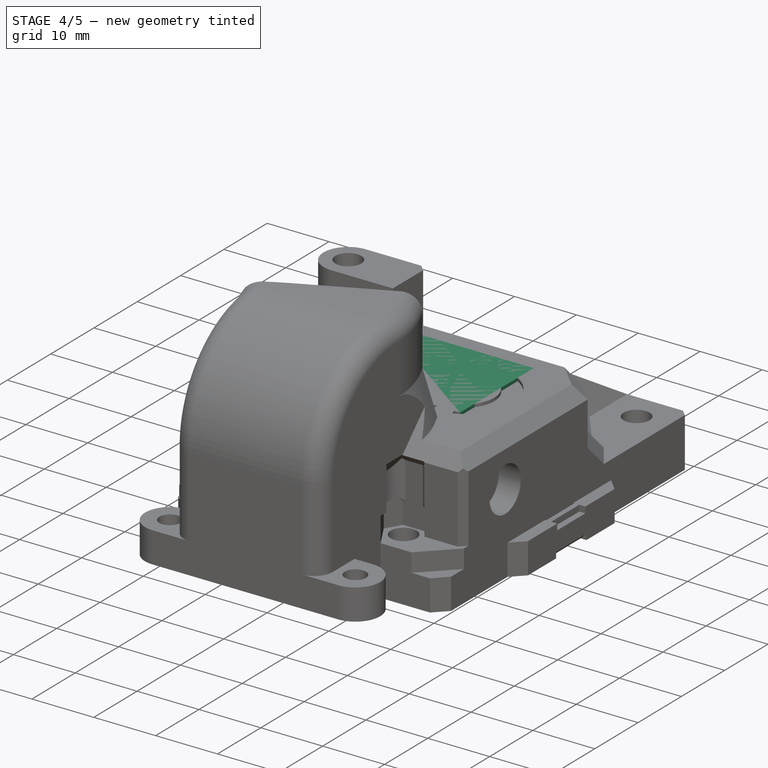
[diagram: stage 4 of 5 — iso view after this stage's code; geometry added in this stage tinted green]
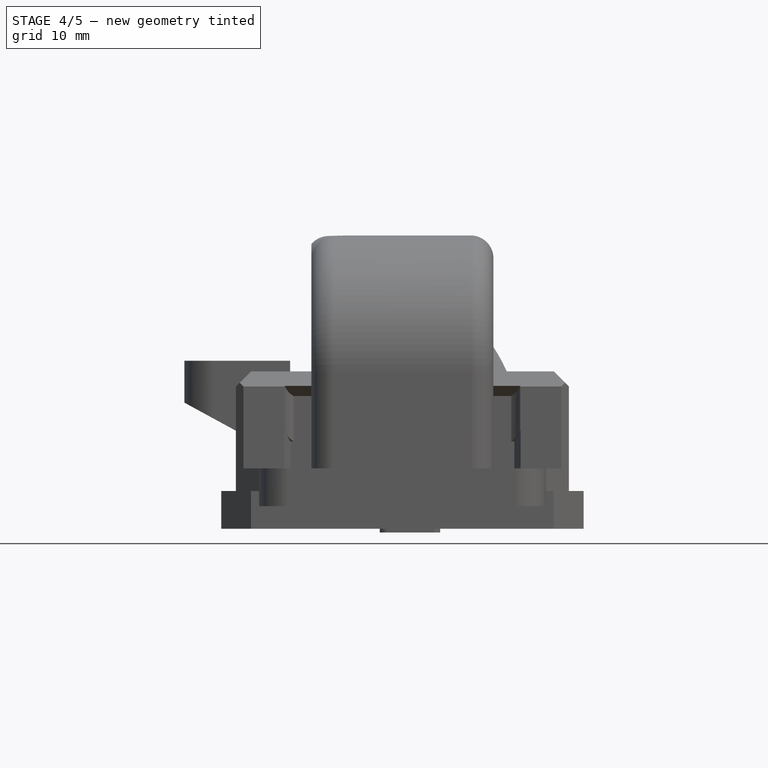
[diagram: stage 4 of 5 — front view after this stage's code; geometry added in this stage tinted green]
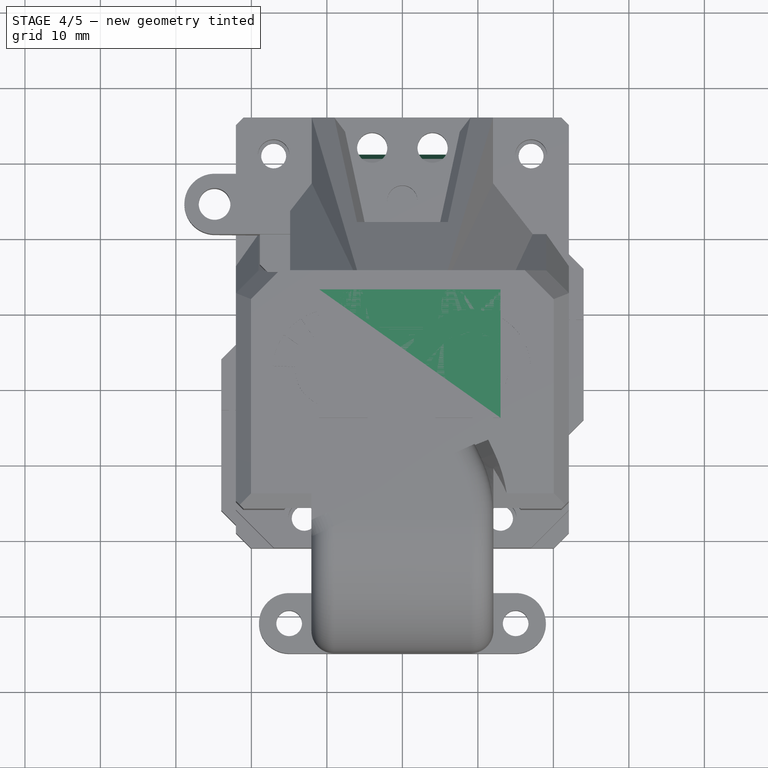
[diagram: stage 4 of 5 — top view after this stage's code; geometry added in this stage tinted green]
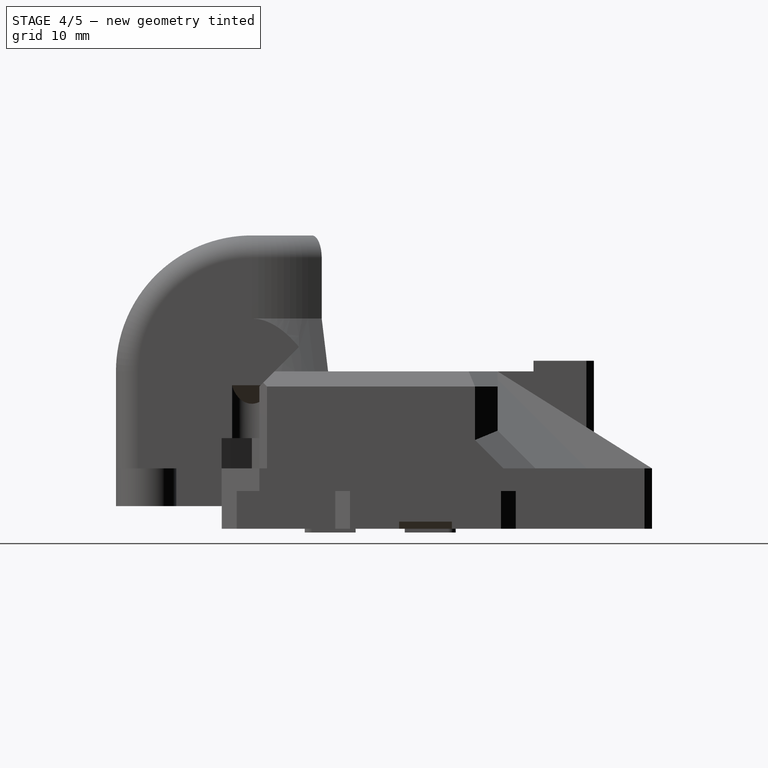
[diagram: stage 4 of 5 — right view after this stage's code; geometry added in this stage tinted green]
FEATURE [Part::Cylinder] Cylinder009
  Angle = 360
  AttacherType = Attacher::AttachEngine3D
  Height = 1
  Placement = pos=(0,-15.8,2) rot=(0,0,1;0rad)
  Radius = 4
FEATURE [Part::Cylinder] Cylinder010
  Angle = 360
  AttacherType = Attacher::AttachEngine3D
  Height = 1
  Placement = pos=(0,-15.8,2) rot=(0,0,1;0rad)
  Radius = 1.65
FEATURE [Part::Box] Box012  label="belt-slot"
  AttacherType = Attacher::AttachEngine3D
  Height = 10.2
  Length = 27
  Placement = pos=(-12,12.6,3.5) rot=(1,0,0;1.5708rad)
  Width = 15.2
FEATURE [Part::Box] Box013  label="belt-slot003"
  AttacherType = Attacher::AttachEngine3D
  Height = 10.2
  Length = 27
  Placement = pos=(-15,-2.4,3.5) rot=(1,0,0;1.5708rad)
  Width = 15.2
FEATURE [Part::Feature] Cut008003001  label="belt-clamp001"
  shape: bbox 6 x 20 x 4 mm, 16 faces (baked)
FEATURE [Part::Box] Box014  label="Cube012"
  AttacherType = Attacher::AttachEngine3D
  Height = 10
  Length = 26
  Placement = pos=(-13,27,0) rot=(0,0,1;0rad)
  Width = 10
FEATURE [Part::Cut] Cut008004003010
  Base = -> Cylinder009
  Tool = -> Cylinder010
FEATURE [Part::Feature] Part__Feature076  label="universal_face002"
  Placement = pos=(-0.00422634,7.50353,0.50127) rot=(-1,0,0;1.5708rad)
  shape: bbox 44.11 x 57.01 x 8.01 mm, 258 faces (baked)
FEATURE [Part::MultiCommon] Common
  Placement = pos=(0,0,-0.00126953) rot=(0,0,1;0rad)
  Shapes = -> [Part__Feature076,Box014]
FEATURE [Part::Box] Box018  label="Cube016"
  AttacherType = Attacher::AttachEngine3D
  Height = 10
  Length = 26
  Placement = pos=(-13,27,0) rot=(0,0,1;0rad)
  Width = 10
FEATURE [Part::Cylinder] Cylinder017
  Angle = 360
  AttacherType = Attacher::AttachEngine3D
  Height = 10
  Placement = pos=(17.05,31,3.5) rot=(0,0,1;1.5708rad)
  Radius = 3
FEATURE [Part::MultiFuse] Fusion001007011011
  Shapes = -> [Cylinder018,Cylinder017]
FEATURE [Part::Box] Box019  label="Cube017"
  AttacherType = Attacher::AttachEngine3D
  Height = 0.5
  Length = 24
  Placement = pos=(-11,-4,20.85) rot=(0,0,1;0rad)
  Width = 17
FEATURE [Part::Cut] Cut008004003012001003001007
  Base = -> Cut008004003012001003001006
  Tool = -> Fusion001007011011
FEATURE [Part::Cut] Cut008004003012001003001008
  Base = -> Cut008004003012001003001007
  Tool = -> Box018
FEATURE [Part::MultiFuse] Fusion001007011019
  Shapes = -> [Common,Cut008004003012001003001008]
FEATURE [Part::MultiFuse] Fusion001007011020
  Shapes = -> [Cut008004003010,Fusion001007011019]
FEATURE [Part::Fillet] Fillet
  Base = -> Fusion001007011020
  Edges = 2 edges r=2: [Edge253,Edge300]
FEATURE [Part::Fillet] Fillet001  label="face-plate-rf"
  Base = -> Fillet
  Edges = 2 edges r=1: [Edge471,Edge603]
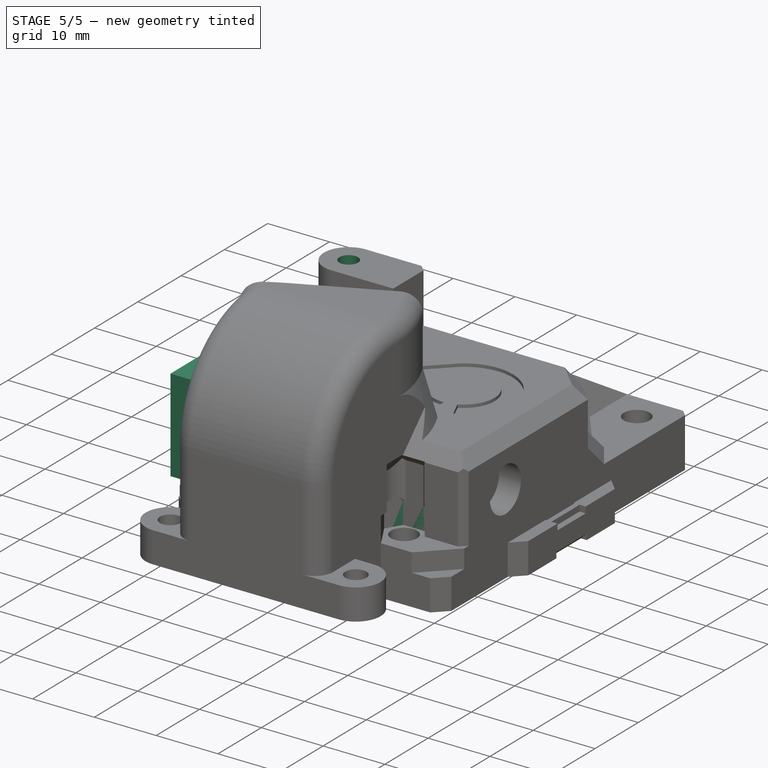
[diagram: stage 5 of 5 — iso view after this stage's code; geometry added in this stage tinted green]
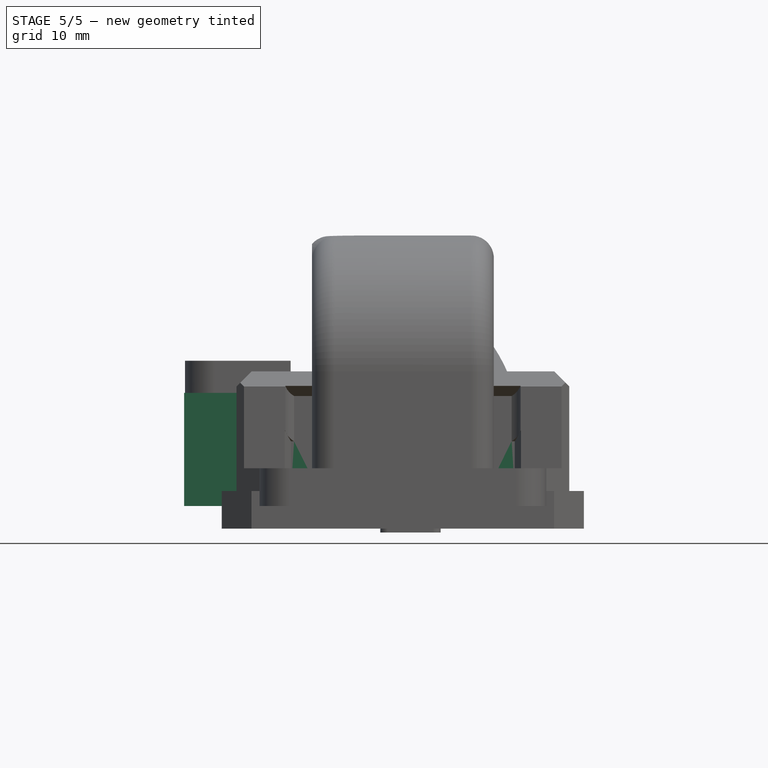
[diagram: stage 5 of 5 — front view after this stage's code; geometry added in this stage tinted green]
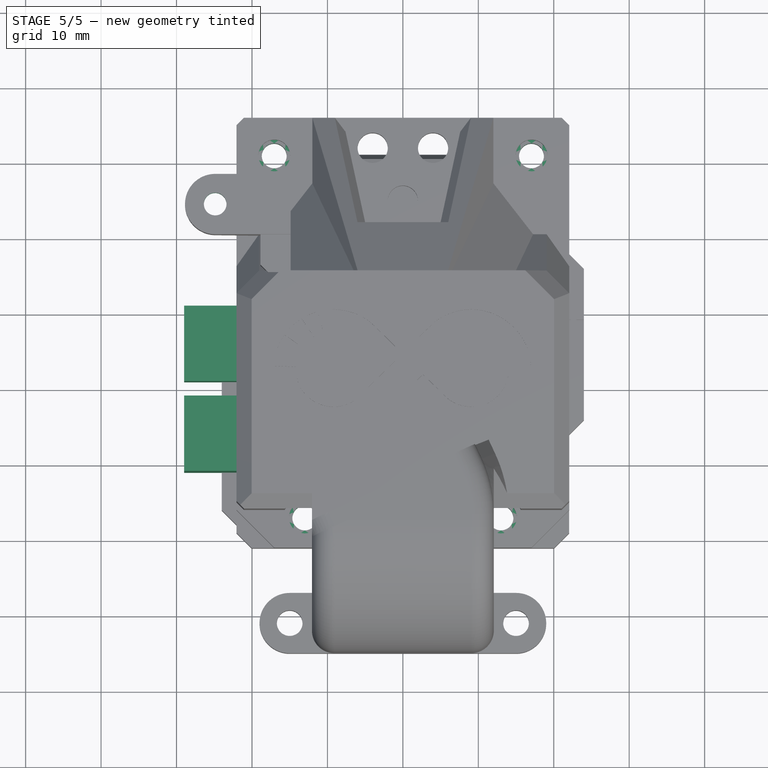
[diagram: stage 5 of 5 — top view after this stage's code; geometry added in this stage tinted green]
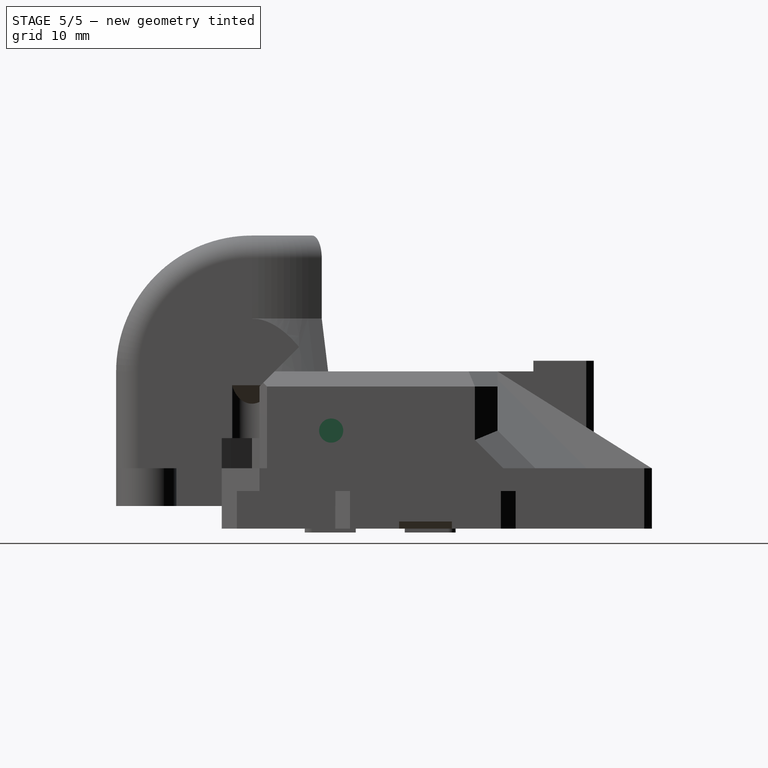
[diagram: stage 5 of 5 — right view after this stage's code; geometry added in this stage tinted green]
FEATURE [Part::Feature] Cut008004001  label="back-body-plain"
  Placement = pos=(0,0,3.5) rot=(0,0,1;0rad)
  shape: bbox 50.93 x 72.49 x 37.34 mm, 290 faces (baked)
FEATURE [Part::Cylinder] Cylinder013
  Angle = 360
  AttacherType = Attacher::AttachEngine3D
  Height = 44
  Placement = pos=(21.5,6.5,13.5) rot=(0.707107,0,-0.707107;3.14159rad)
  Radius = 1.6
FEATURE [Part::Cylinder] Cylinder014
  Angle = 360
  AttacherType = Attacher::AttachEngine3D
  Height = 44
  Placement = pos=(-21.5,-6.5,13.5) rot=(0,1,0;1.5708rad)
  Radius = 1.6
FEATURE [Part::Cylinder] Cylinder015
  Angle = 360
  AttacherType = Attacher::AttachEngine3D
  Height = 4
  Placement = pos=(18.5,-6.5,13.5) rot=(0,1,0;1.5708rad)
  Radius = 3.6
FEATURE [Part::Cylinder] Cylinder016
  Angle = 360
  AttacherType = Attacher::AttachEngine3D
  Height = 4
  Placement = pos=(-18.5,6.5,13.5) rot=(0.707107,0,-0.707107;3.14159rad)
  Radius = 3.6
FEATURE [Part::MultiFuse] Fusion001007010
  Shapes = -> [Cylinder015,Cylinder016,Cylinder013,Cylinder014]
FEATURE [Part::Feature] Fusion001007011001  label="face-plate-merged001"
  shape: bbox 44.1 x 57 x 8 mm, 220 faces (baked)
FEATURE [Part::Box] Box010  label="Cube010"
  AttacherType = Attacher::AttachEngine3D
  Height = 10
  Length = 10
  Placement = pos=(-29,1,3.5) rot=(0,0,1;0rad)
  Width = 10
FEATURE [Part::Box] Box011  label="Cube011"
  AttacherType = Attacher::AttachEngine3D
  Height = 15
  Length = 10
  Placement = pos=(-29,-11,3.5) rot=(0,0,1;0rad)
  Width = 10
FEATURE [Part::Box] Box016  label="Cube014"
  AttacherType = Attacher::AttachEngine3D
  Height = 2
  Length = 10
  Placement = pos=(-43.5,-11,2.5) rot=(0,0,1;0rad)
  Width = 10
FEATURE [Part::Box] Box017  label="Cube015"
  AttacherType = Attacher::AttachEngine3D
  Height = 2
  Length = 10
  Placement = pos=(25,1,2.5) rot=(0,0,1;0rad)
  Width = 10
FEATURE [Part::Chamfer] Chamfer001
  Base = -> Box016
  Edges = 1 edges r=1: [Edge6]
  Placement = pos=(12.45,0,0) rot=(0,0,1;0rad)
FEATURE [Part::Chamfer] Chamfer002
  Base = -> Box017
  Edges = 1 edges r=1: [Edge2]
  Placement = pos=(-3.95,0,0) rot=(0,0,1;0rad)
FEATURE [Part::MultiFuse] Fusion001007011002
  Shapes = -> [Chamfer002,Chamfer001]
FEATURE [Part::Feature] Frantic_Trug_1_001001_solid  label="snakeoil-logo"
  Placement = pos=(13,-13.5,20.85) rot=(0,0,1;0rad)
  shape: bbox 37 x 22 x 4 mm, 291 faces (baked)
FEATURE [Part::MultiFuse] Fusion001007011012
  Shapes = -> [Box012,Box013]
FEATURE [Part::MultiFuse] Fusion001007011013
  Shapes = -> [Fusion001007010,Fusion001007011012,Fusion001007011002]
FEATURE [Part::Cut] Cut008004003012001002
  Base = -> Cut008004001
  Tool = -> Fusion001007011013
FEATURE [Part::MultiFuse] Fusion001007011014
  Shapes = -> [Cut008004003012001002,Box019]
FEATURE [Part::Cut] Cut008004003012001003
  Base = -> Fusion001007011014
  Tool = -> Frantic_Trug_1_001001_solid
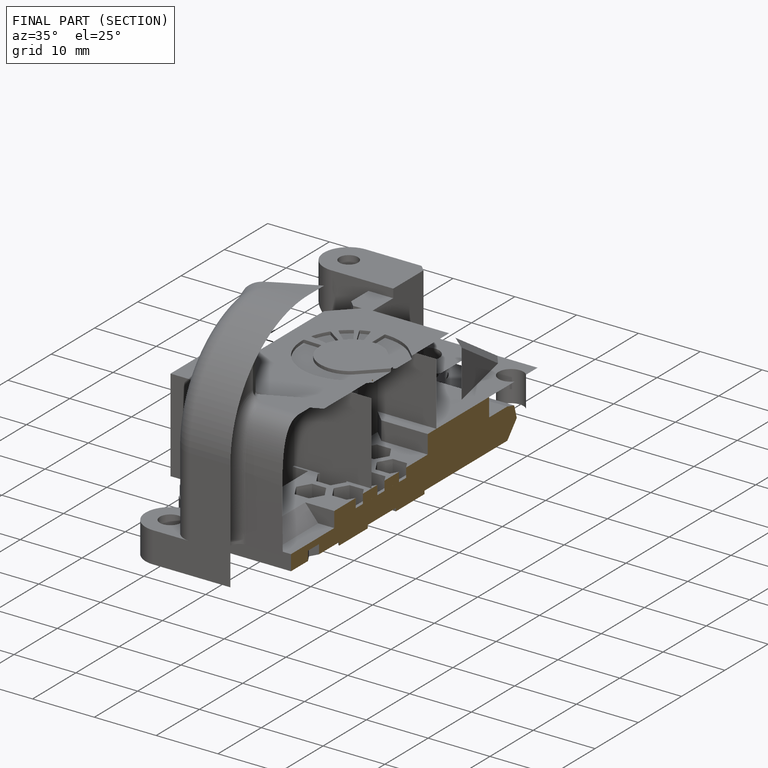
[diagram: finished part — half-section view (interior)]
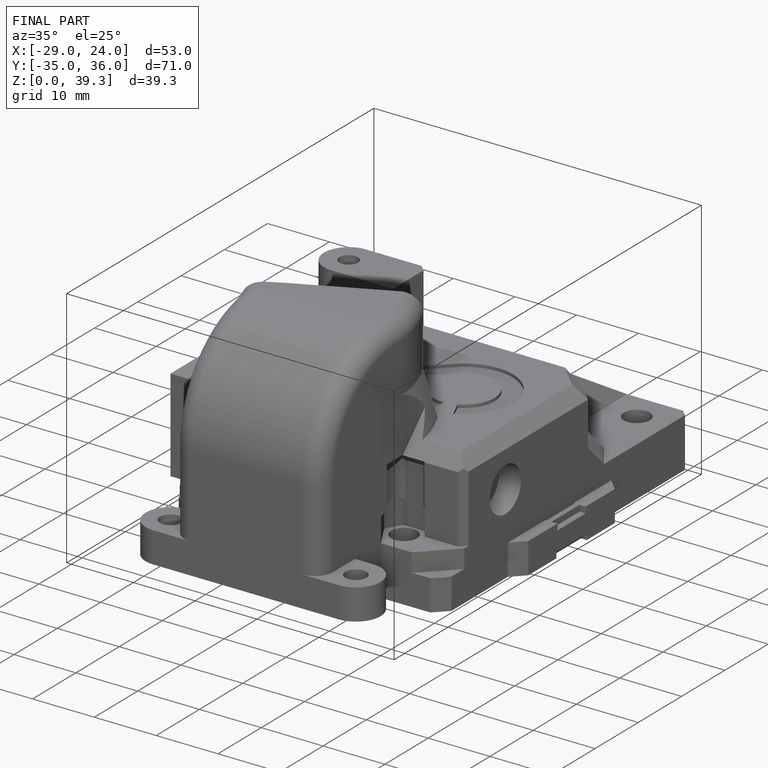
[diagram: finished part — iso view with bounding-box wireframe]
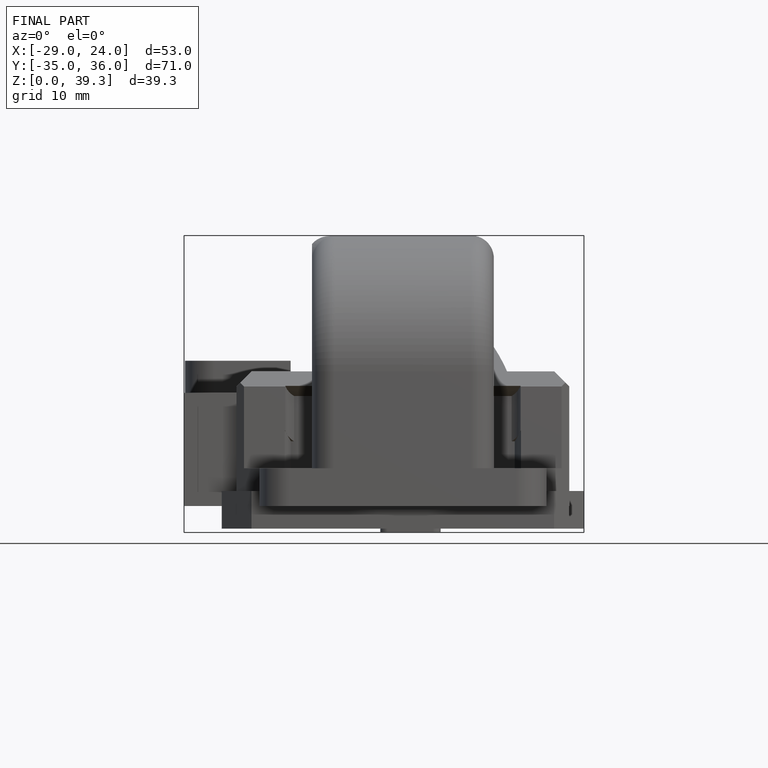
[diagram: finished part — front view with bounding-box wireframe]
